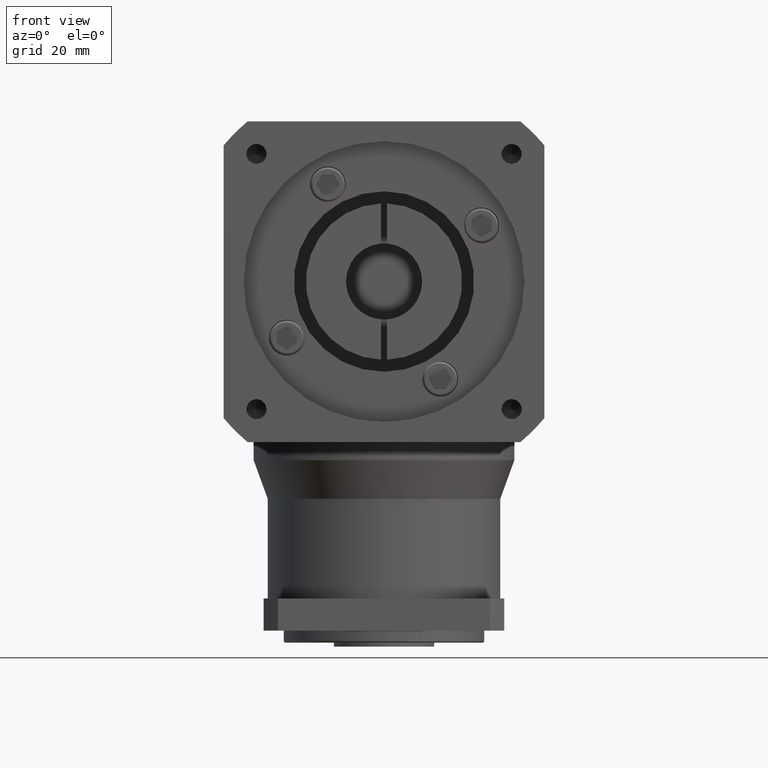
[diagram: clean part render]
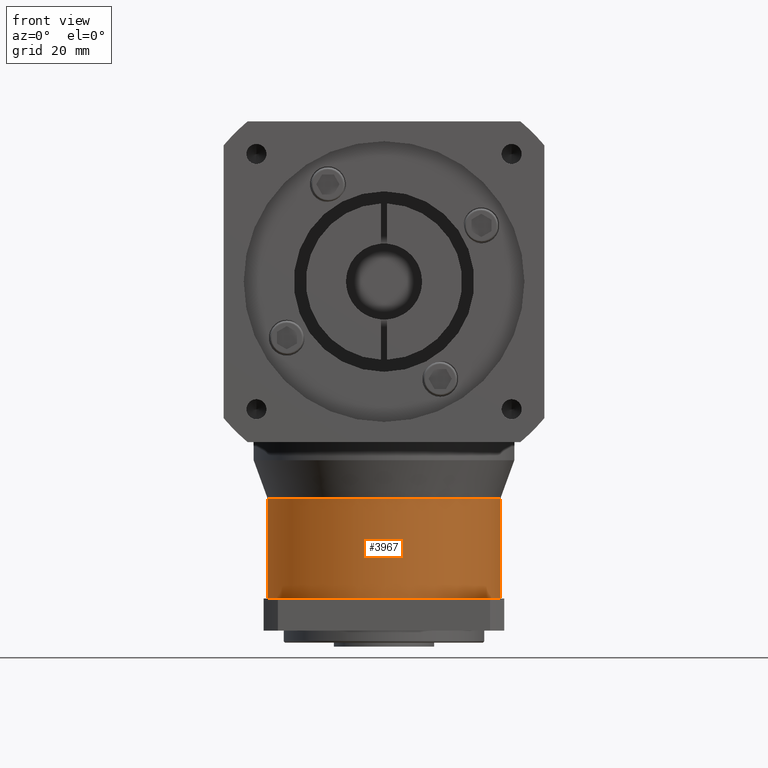
[diagram: same view with one face highlighted and labeled with its STEP entity id]
A machine part, front view. The second image highlights one B-rep face of the part: STEP entity #3967.
In plain terms, the highlighted cylindrical surface (partial cylindrical patch) has radius 29 mm, axis along (-0, -0, 1).
Its self-contained STEP definition (entity closure, byte-faithful):
#526 = EDGE_CURVE ( 'NONE', #6463, #3756, #6460, .T. ) ;
#914 = DIRECTION ( 'NONE',  ( -0.0000000000000000000, -0.0000000000000000000, 1.000000000000000000 ) ) ;
#992 = VERTEX_POINT ( 'NONE', #3058 ) ;
#1164 = VERTEX_POINT ( 'NONE', #1920 ) ;
#1403 = LINE ( 'NONE', #5911, #3169 ) ;
#1526 = EDGE_CURVE ( 'NONE', #992, #1164, #2128, .T. ) ;
#1535 = LINE ( 'NONE', #2161, #6836 ) ;
#1920 = CARTESIAN_POINT ( 'NONE',  ( -29.00000000000000000, 3.551475717527324000E-015, -21.61617096809094100 ) ) ;
#1969 = DIRECTION ( 'NONE',  ( -0.0000000000000000000, -0.0000000000000000000, 1.000000000000000000 ) ) ;
#2128 = CIRCLE ( 'NONE', #7272, 29.00000000000000000 ) ;
#2161 = CARTESIAN_POINT ( 'NONE',  ( 29.00000000000000000, 0.0000000000000000000, -54.50000000000000000 ) ) ;
#2295 = DIRECTION ( 'NONE',  ( 0.0000000000000000000, 0.0000000000000000000, -1.000000000000000000 ) ) ;
#2676 = CYLINDRICAL_SURFACE ( 'NONE', #7423, 29.00000000000000000 ) ;
#2704 = EDGE_CURVE ( 'NONE', #6463, #992, #1535, .T. ) ;
#2992 = DIRECTION ( 'NONE',  ( 0.0000000000000000000, 0.0000000000000000000, -1.000000000000000000 ) ) ;
#3058 = CARTESIAN_POINT ( 'NONE',  ( 29.00000000000000000, 0.0000000000000000000, -21.61617096809094100 ) ) ;
#3161 = ORIENTED_EDGE ( 'NONE', *, *, #1526, .T. ) ;
#3169 = VECTOR ( 'NONE', #1969, 1000.000000000000000 ) ;
#3179 = DIRECTION ( 'NONE',  ( 1.000000000000000000, 0.0000000000000000000, 0.0000000000000000000 ) ) ;
#3632 = ORIENTED_EDGE ( 'NONE', *, *, #526, .F. ) ;
#3756 = VERTEX_POINT ( 'NONE', #3796 ) ;
#3772 = DIRECTION ( 'NONE',  ( -1.000000000000000000, 0.0000000000000000000, 0.0000000000000000000 ) ) ;
#3796 = CARTESIAN_POINT ( 'NONE',  ( -29.00000000000000000, 3.551475717527324000E-015, -46.50000000000000000 ) ) ;
#3967 = ADVANCED_FACE ( 'NONE', ( #6834 ), #2676, .T. ) ;
#4140 = EDGE_LOOP ( 'NONE', ( #7566, #3632, #6119, #3161 ) ) ;
#4572 = AXIS2_PLACEMENT_3D ( 'NONE', #8219, #2992, #3772 ) ;
#5648 = CARTESIAN_POINT ( 'NONE',  ( 29.00000000000000000, 0.0000000000000000000, -46.50000000000000000 ) ) ;
#5812 = DIRECTION ( 'NONE',  ( -0.0000000000000000000, -0.0000000000000000000, 1.000000000000000000 ) ) ;
#5911 = CARTESIAN_POINT ( 'NONE',  ( -29.00000000000000000, 3.551475717527324000E-015, -54.50000000000000000 ) ) ;
#6119 = ORIENTED_EDGE ( 'NONE', *, *, #2704, .T. ) ;
#6145 = DIRECTION ( 'NONE',  ( 1.000000000000000000, 0.0000000000000000000, 0.0000000000000000000 ) ) ;
#6460 = CIRCLE ( 'NONE', #4572, 29.00000000000000000 ) ;
#6463 = VERTEX_POINT ( 'NONE', #5648 ) ;
#6834 = FACE_OUTER_BOUND ( 'NONE', #4140, .T. ) ;
#6836 = VECTOR ( 'NONE', #5812, 1000.000000000000000 ) ;
#7272 = AXIS2_PLACEMENT_3D ( 'NONE', #7742, #2295, #6145 ) ;
#7423 = AXIS2_PLACEMENT_3D ( 'NONE', #8423, #914, #3179 ) ;
#7566 = ORIENTED_EDGE ( 'NONE', *, *, #8559, .F. ) ;
#7742 = CARTESIAN_POINT ( 'NONE',  ( 0.0000000000000000000, 0.0000000000000000000, -21.61617096809094100 ) ) ;
#8219 = CARTESIAN_POINT ( 'NONE',  ( 0.0000000000000000000, 0.0000000000000000000, -46.50000000000000000 ) ) ;
#8423 = CARTESIAN_POINT ( 'NONE',  ( 0.0000000000000000000, 0.0000000000000000000, -54.50000000000000000 ) ) ;
#8559 = EDGE_CURVE ( 'NONE', #3756, #1164, #1403, .T. ) ;